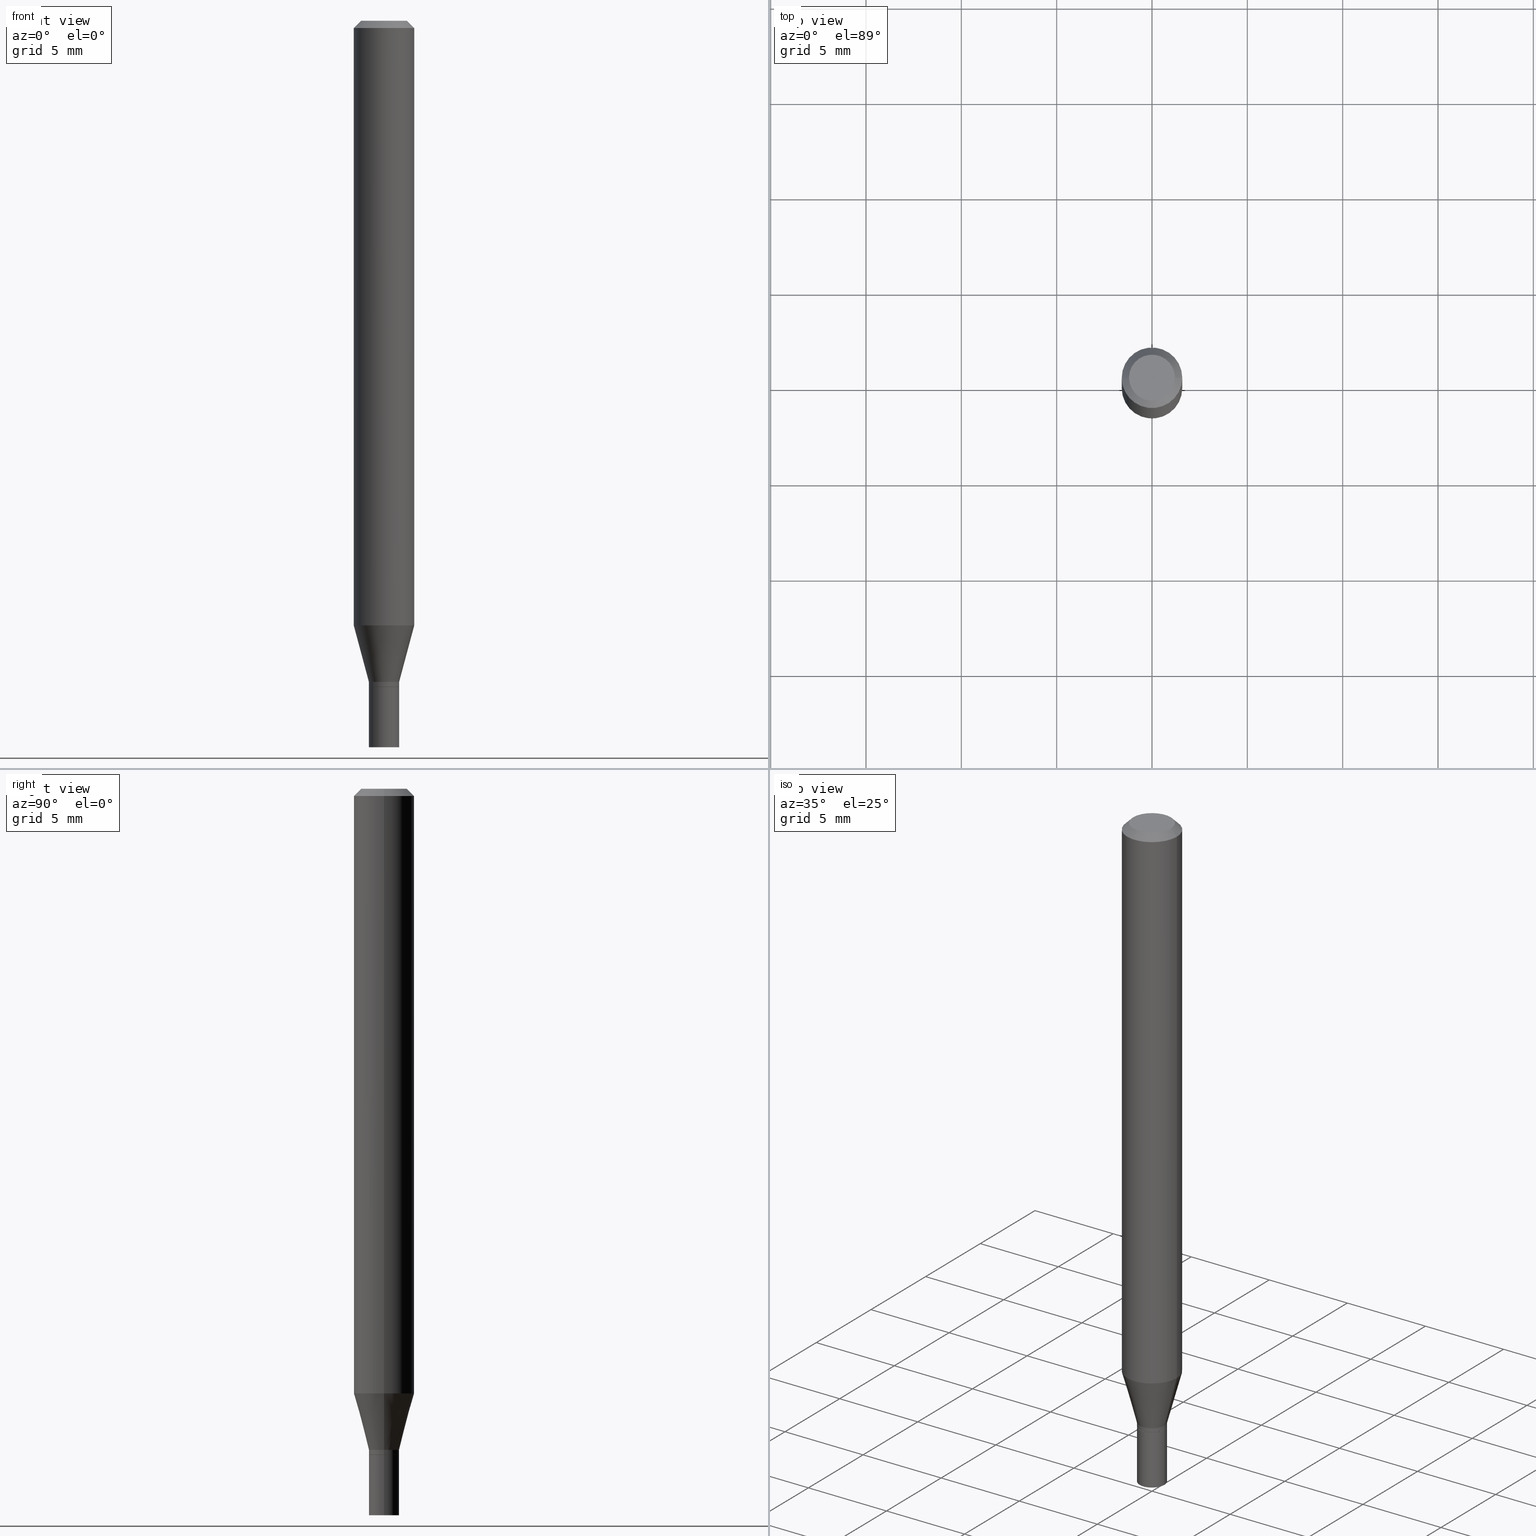
[diagram: canonical four-view strip — front | top / right | iso, engineering-drawing reading convention]
A machine part, canonical four-view strip (front | top / right | iso — engineering-drawing reading convention). The complete STEP part file that produces these views, byte-faithful:
ISO-10303-21;
HEADER;
FILE_DESCRIPTION (( 'STEP AP203' ),
    '1' );
FILE_NAME ('31251.STEP',
    '2024-03-13T16:28:59',
    ( '' ),
    ( '' ),
    'SwSTEP 2.0',
    'SolidWorks 2023',
    '' );
FILE_SCHEMA (( 'CONFIG_CONTROL_DESIGN' ));
ENDSEC;

DATA;
#1 = PERSON_AND_ORGANIZATION_ROLE ( 'design_supplier' ) ;
#2 =( GEOMETRIC_REPRESENTATION_CONTEXT ( 3 ) GLOBAL_UNCERTAINTY_ASSIGNED_CONTEXT ( ( #271 ) ) GLOBAL_UNIT_ASSIGNED_CONTEXT ( ( #391, #135, #212 ) ) REPRESENTATION_CONTEXT ( 'NONE', 'WORKASPACE' ) );
#3 = DIRECTION ( 'NONE',  ( -1.000000000000000000, 6.982962677686265922E-15, -4.876176775795935793E-29 ) ) ;
#4 = ORIENTED_EDGE ( 'NONE', *, *, #430, .T. ) ;
#5 = ORIENTED_EDGE ( 'NONE', *, *, #12, .T. ) ;
#6 = CONICAL_SURFACE ( 'NONE', #70, 0.06250000000000000000, 0.7853981633974563836 ) ;
#7 = CC_DESIGN_PERSON_AND_ORGANIZATION_ASSIGNMENT ( #147, #181, ( #152 ) ) ;
#8 = AXIS2_PLACEMENT_3D ( 'NONE', #119, #44, #185 ) ;
#9 = COORDINATED_UNIVERSAL_TIME_OFFSET ( 5, 0, .BEHIND. ) ;
#10 = DIRECTION ( 'NONE',  ( -2.445468806185136877E-29, 3.491481338843145188E-15, 1.000000000000000000 ) ) ;
#11 = CARTESIAN_POINT ( 'NONE',  ( 3.361296874101470580E-29, -4.799041100239904215E-15, -1.374500000000000055 ) ) ;
#12 = EDGE_CURVE ( 'NONE', #381, #95, #356, .T. ) ;
#13 = ADVANCED_FACE ( 'NONE', ( #139 ), #441, .T. ) ;
#14 = DIRECTION ( 'NONE',  ( -2.445468806185136597E-29, 3.491481338843145583E-15, 1.000000000000000000 ) ) ;
#15 = ORIENTED_EDGE ( 'NONE', *, *, #227, .F. ) ;
#16 = VECTOR ( 'NONE', #235, 39.37007874015748143 ) ;
#17 = DIRECTION ( 'NONE',  ( -2.445468806185136877E-29, 3.491481338843145188E-15, 1.000000000000000000 ) ) ;
#18 = EDGE_LOOP ( 'NONE', ( #404, #175, #355, #98 ) ) ;
#19 = DIRECTION ( 'NONE',  ( 2.438088387897960049E-29, -3.491481338843145188E-15, -1.000000000000000000 ) ) ;
#20 = DIRECTION ( 'NONE',  ( -2.445468806185136597E-29, 3.491481338843145583E-15, 1.000000000000000000 ) ) ;
#21 = FACE_OUTER_BOUND ( 'NONE', #22, .T. ) ;
#22 = EDGE_LOOP ( 'NONE', ( #427, #107, #424, #59 ) ) ;
#23 = AXIS2_PLACEMENT_3D ( 'NONE', #282, #453, #243 ) ;
#24 = AXIS2_PLACEMENT_3D ( 'NONE', #370, #373, #434 ) ;
#25 = CARTESIAN_POINT ( 'NONE',  ( 3.316907271900976096E-16, 0.04749999999999999362, -2.863946871395908498E-16 ) ) ;
#26 = FACE_OUTER_BOUND ( 'NONE', #18, .T. ) ;
#27 = DIRECTION ( 'NONE',  ( 1.000000000000000000, -6.982962677686270655E-15, 0.000000000000000000 ) ) ;
#28 = DIRECTION ( 'NONE',  ( 2.445468806185136597E-29, -3.491481338843145583E-15, -1.000000000000000000 ) ) ;
#29 = CARTESIAN_POINT ( 'NONE',  ( 0.000000000000000000, 0.000000000000000000, 0.000000000000000000 ) ) ;
#30 = EDGE_CURVE ( 'NONE', #226, #393, #388, .T. ) ;
#31 = DIRECTION ( 'NONE',  ( 1.000000000000000000, -6.982962677686275388E-15, 0.000000000000000000 ) ) ;
#32 = DIRECTION ( 'NONE',  ( 1.000000000000000000, 0.000000000000000000, 0.000000000000000000 ) ) ;
#33 = CARTESIAN_POINT ( 'NONE',  ( 0.000000000000000000, 0.000000000000000000, 0.000000000000000000 ) ) ;
#34 = DIRECTION ( 'NONE',  ( 1.000000000000000000, -6.982962677686274599E-15, 0.000000000000000000 ) ) ;
#35 = DIRECTION ( 'NONE',  ( -2.445468806185136597E-29, 3.491481338843145583E-15, 1.000000000000000000 ) ) ;
#36 = ADVANCED_FACE ( 'NONE', ( #74 ), #198, .T. ) ;
#37 = CARTESIAN_POINT ( 'NONE',  ( 3.362519608504562260E-29, -4.800786840909324930E-15, -1.375000000000000000 ) ) ;
#38 = DIRECTION ( 'NONE',  ( -0.7071067811865531239, 2.468850131082316225E-15, -0.7071067811865416886 ) ) ;
#39 = COORDINATED_UNIVERSAL_TIME_OFFSET ( 5, 0, .BEHIND. ) ;
#40 = DIRECTION ( 'NONE',  ( -2.445468806185136597E-29, 3.491481338843145583E-15, 1.000000000000000000 ) ) ;
#41 = SECURITY_CLASSIFICATION ( '', '', #295 ) ;
#42 = VECTOR ( 'NONE', #339, 39.37007874015748854 ) ;
#43 = DIRECTION ( 'NONE',  ( 1.000000000000000000, -6.982962677686267499E-15, 4.852736867747366768E-29 ) ) ;
#44 = DIRECTION ( 'NONE',  ( -2.445468806185136597E-29, 3.491481338843145583E-15, 1.000000000000000000 ) ) ;
#45 = CONICAL_SURFACE ( 'NONE', #315, 0.03075000000000000649, 0.7853981633974739252 ) ;
#46 = CARTESIAN_POINT ( 'NONE',  ( 0.000000000000000000, 0.000000000000000000, 0.000000000000000000 ) ) ;
#47 = VECTOR ( 'NONE', #10, 39.37007874015748143 ) ;
#48 = DIRECTION ( 'NONE',  ( 1.000000000000000000, -6.982962677686266711E-15, 4.876176775795935793E-29 ) ) ;
#49 = LINE ( 'NONE', #344, #16 ) ;
#50 = CARTESIAN_POINT ( 'NONE',  ( -0.06250000000000000000, -1.761433136604187439E-15, -0.01499999999999999944 ) ) ;
#51 = CIRCLE ( 'NONE', #267, 0.03075000000000000649 ) ;
#52 = DIRECTION ( 'NONE',  ( -2.445468806185136597E-29, 3.491481338843145583E-15, 1.000000000000000000 ) ) ;
#53 = CARTESIAN_POINT ( 'NONE',  ( -0.04749999999999999362, 3.578768372314206562E-16, -2.410986470890852239E-16 ) ) ;
#54 = CARTESIAN_POINT ( 'NONE',  ( 0.06250000000000000000, -4.811533449433679005E-16, -0.01499999999999999944 ) ) ;
#55 = VERTEX_POINT ( 'NONE', #173 ) ;
#56 = DIRECTION ( 'NONE',  ( -2.445468806185136597E-29, 3.491481338843145583E-15, 1.000000000000000000 ) ) ;
#57 = ORIENTED_EDGE ( 'NONE', *, *, #73, .F. ) ;
#58 = DIRECTION ( 'NONE',  ( 1.000000000000000000, -6.982962677686265922E-15, 4.876176775795935793E-29 ) ) ;
#59 = ORIENTED_EDGE ( 'NONE', *, *, #293, .F. ) ;
#60 = DIRECTION ( 'NONE',  ( -2.445468806185136597E-29, 3.491481338843145583E-15, 1.000000000000000000 ) ) ;
#61 = ORIENTED_EDGE ( 'NONE', *, *, #78, .F. ) ;
#62 = CC_DESIGN_DATE_AND_TIME_ASSIGNMENT ( #331, #149, ( #41 ) ) ;
#63 = EDGE_LOOP ( 'NONE', ( #265, #422 ) ) ;
#64 = CARTESIAN_POINT ( 'NONE',  ( -0.03075000000000000649, -4.582294949663094520E-15, -1.375000000000000000 ) ) ;
#65 = ORIENTED_EDGE ( 'NONE', *, *, #369, .F. ) ;
#66 = PLANE ( 'NONE',  #335 ) ;
#67 = DIRECTION ( 'NONE',  ( 0.000000000000000000, 0.000000000000000000, 1.000000000000000000 ) ) ;
#68 = CYLINDRICAL_SURFACE ( 'NONE', #306, 0.03124999999999979877 ) ;
#69 = CARTESIAN_POINT ( 'NONE',  ( 0.03124999999999979877, -2.182175836776944542E-16, 1.523805242436219951E-30 ) ) ;
#70 = AXIS2_PLACEMENT_3D ( 'NONE', #134, #284, #394 ) ;
#71 = APPLICATION_PROTOCOL_DEFINITION ( 'international standard', 'config_control_design', 1994, #266 ) ;
#72 = AXIS2_PLACEMENT_3D ( 'NONE', #383, #281, #353 ) ;
#73 = EDGE_CURVE ( 'NONE', #415, #308, #292, .T. ) ;
#74 = FACE_OUTER_BOUND ( 'NONE', #291, .T. ) ;
#75 = DIRECTION ( 'NONE',  ( -2.445468806185136597E-29, 3.491481338843145583E-15, 1.000000000000000000 ) ) ;
#76 = CARTESIAN_POINT ( 'NONE',  ( 3.362519608504562260E-29, -4.800786840909324930E-15, -1.375000000000000000 ) ) ;
#77 = DATE_AND_TIME ( #399, #303 ) ;
#78 = EDGE_CURVE ( 'NONE', #215, #431, #151, .T. ) ;
#79 = DIRECTION ( 'NONE',  ( -2.445468806185136597E-29, 3.491481338843145583E-15, 1.000000000000000000 ) ) ;
#80 = PERSON_AND_ORGANIZATION ( #174, #248 ) ;
#81 = APPROVAL_PERSON_ORGANIZATION ( #80, #396, #297 ) ;
#82 = AXIS2_PLACEMENT_3D ( 'NONE', #125, #19, #310 ) ;
#83 = VECTOR ( 'NONE', #296, 39.37007874015748143 ) ;
#84 = DIRECTION ( 'NONE',  ( -2.445468806185136597E-29, 3.491481338843145583E-15, 1.000000000000000000 ) ) ;
#85 = CIRCLE ( 'NONE', #172, 0.06250000000000000000 ) ;
#86 = CARTESIAN_POINT ( 'NONE',  ( 3.668203209277704895E-29, -5.237222008264718177E-15, -1.500000000000000222 ) ) ;
#87 = DIRECTION ( 'NONE',  ( -2.445468806185136877E-29, 3.491481338843145188E-15, 1.000000000000000000 ) ) ;
#88 = ORIENTED_EDGE ( 'NONE', *, *, #73, .T. ) ;
#89 = CARTESIAN_POINT ( 'NONE',  ( 3.576687321579069994E-29, -5.368277968210015545E-15, -1.500000000000000222 ) ) ;
#90 = ADVANCED_BREP_SHAPE_REPRESENTATION ( '31251', ( #213, #190, #444 ), #2 ) ;
#91 = AXIS2_PLACEMENT_3D ( 'NONE', #277, #56, #163 ) ;
#92 = EDGE_CURVE ( 'NONE', #180, #246, #49, .T. ) ;
#93 = CARTESIAN_POINT ( 'NONE',  ( 0.03124999999999993061, -5.017258683917599261E-15, -1.374500000000000055 ) ) ;
#94 = CARTESIAN_POINT ( 'NONE',  ( 0.000000000000000000, 0.000000000000000000, 0.000000000000000000 ) ) ;
#95 = VERTEX_POINT ( 'NONE', #93 ) ;
#96 = DIRECTION ( 'NONE',  ( 1.000000000000000000, -6.982962677686274599E-15, 0.000000000000000000 ) ) ;
#97 = ORIENTED_EDGE ( 'NONE', *, *, #186, .T. ) ;
#98 = ORIENTED_EDGE ( 'NONE', *, *, #143, .F. ) ;
#99 = DIRECTION ( 'NONE',  ( -2.445468806185136597E-29, 3.491481338843145583E-15, 1.000000000000000000 ) ) ;
#100 = ORIENTED_EDGE ( 'NONE', *, *, #195, .T. ) ;
#101 = ORIENTED_EDGE ( 'NONE', *, *, #206, .T. ) ;
#102 = CIRCLE ( 'NONE', #24, 0.06250000000000000000 ) ;
#103 = MECHANICAL_CONTEXT ( 'NONE', #239, 'mechanical' ) ;
#104 = ORIENTED_EDGE ( 'NONE', *, *, #260, .T. ) ;
#105 = ORIENTED_EDGE ( 'NONE', *, *, #227, .T. ) ;
#106 = PERSON_AND_ORGANIZATION ( #174, #248 ) ;
#107 = ORIENTED_EDGE ( 'NONE', *, *, #121, .T. ) ;
#108 = CC_DESIGN_DATE_AND_TIME_ASSIGNMENT ( #256, #395, ( #371 ) ) ;
#109 = APPROVAL_DATE_TIME ( #142, #182 ) ;
#110 = CARTESIAN_POINT ( 'NONE',  ( -0.06250000000000000000, -3.914583262975789231E-15, -1.248373412263471760 ) ) ;
#111 = AXIS2_PLACEMENT_3D ( 'NONE', #253, #137, #326 ) ;
#112 = DIRECTION ( 'NONE',  ( 1.000000000000000000, -6.982962677686267499E-15, 4.876176775795935232E-29 ) ) ;
#113 = PERSON_AND_ORGANIZATION ( #174, #248 ) ;
#114 = EDGE_LOOP ( 'NONE', ( #4, #425, #153, #140 ) ) ;
#115 = ADVANCED_FACE ( 'NONE', ( #196 ), #341, .F. ) ;
#116 = CARTESIAN_POINT ( 'NONE',  ( 0.04749999999999999362, -4.035134999187582567E-16, -2.410986470890802443E-16 ) ) ;
#117 = AXIS2_PLACEMENT_3D ( 'NONE', #345, #20, #129 ) ;
#118 = CARTESIAN_POINT ( 'NONE',  ( -0.03075000000000000649, -4.579645722488984108E-15, -1.375000000000000000 ) ) ;
#119 = CARTESIAN_POINT ( 'NONE',  ( 3.668203209277704895E-29, -5.237222008264718177E-15, -1.500000000000000222 ) ) ;
#120 = FACE_OUTER_BOUND ( 'NONE', #114, .T. ) ;
#121 = EDGE_CURVE ( 'NONE', #431, #280, #276, .T. ) ;
#122 = ORIENTED_EDGE ( 'NONE', *, *, #327, .F. ) ;
#123 = CIRCLE ( 'NONE', #91, 0.03075000000000000649 ) ;
#124 = DIRECTION ( 'NONE',  ( -0.2588190451025215166, 5.211531920934551042E-15, 0.9659258262890679791 ) ) ;
#125 = CARTESIAN_POINT ( 'NONE',  ( 2.182175836777295092E-16, 0.03124999999999520522, -1.375000000000000000 ) ) ;
#126 = LINE ( 'NONE', #272, #316 ) ;
#127 = ADVANCED_FACE ( 'NONE', ( #162 ), #459, .T. ) ;
#128 = DIRECTION ( 'NONE',  ( -2.445468806185136597E-29, 3.491481338843145583E-15, 1.000000000000000000 ) ) ;
#129 = DIRECTION ( 'NONE',  ( 1.000000000000000000, -6.982962677686266711E-15, 4.876176775795935793E-29 ) ) ;
#130 = ORIENTED_EDGE ( 'NONE', *, *, #159, .T. ) ;
#131 = FACE_OUTER_BOUND ( 'NONE', #63, .T. ) ;
#132 = CARTESIAN_POINT ( 'NONE',  ( 3.052858238161217332E-29, -4.358672472825852637E-15, -1.248373412263471760 ) ) ;
#133 = ADVANCED_FACE ( 'NONE', ( #141 ), #6, .T. ) ;
#134 = CARTESIAN_POINT ( 'NONE',  ( 3.668203209277705088E-31, -5.237222008264718399E-17, -0.01499999999999999944 ) ) ;
#135 =( NAMED_UNIT ( * ) PLANE_ANGLE_UNIT ( ) SI_UNIT ( $, .RADIAN. ) );
#136 = AXIS2_PLACEMENT_3D ( 'NONE', #11, #128, #157 ) ;
#137 = DIRECTION ( 'NONE',  ( -2.445468806185136597E-29, 3.491481338843145583E-15, 1.000000000000000000 ) ) ;
#138 = DIRECTION ( 'NONE',  ( -2.445468806185136597E-29, 3.491481338843145583E-15, 1.000000000000000000 ) ) ;
#139 = FACE_OUTER_BOUND ( 'NONE', #433, .T. ) ;
#140 = ORIENTED_EDGE ( 'NONE', *, *, #224, .F. ) ;
#141 = FACE_OUTER_BOUND ( 'NONE', #273, .T. ) ;
#142 = DATE_AND_TIME ( #429, #376 ) ;
#143 = EDGE_CURVE ( 'NONE', #95, #180, #426, .T. ) ;
#144 = ORIENTED_EDGE ( 'NONE', *, *, #195, .F. ) ;
#145 = CARTESIAN_POINT ( 'NONE',  ( 3.338064920442711836E-29, -4.765872027520893280E-15, -1.364999999999999991 ) ) ;
#146 = VECTOR ( 'NONE', #87, 39.37007874015748143 ) ;
#147 = PERSON_AND_ORGANIZATION ( #174, #248 ) ;
#148 = AXIS2_PLACEMENT_3D ( 'NONE', #170, #35, #27 ) ;
#149 = DATE_TIME_ROLE ( 'classification_date' ) ;
#150 = ADVANCED_FACE ( 'NONE', ( #252 ), #66, .F. ) ;
#151 = CIRCLE ( 'NONE', #218, 0.03125000000000000694 ) ;
#152 = PRODUCT_DEFINITION_FORMATION_WITH_SPECIFIED_SOURCE ( 'ANY', '', #367, .NOT_KNOWN. ) ;
#153 = ORIENTED_EDGE ( 'NONE', *, *, #446, .F. ) ;
#154 = ADVANCED_FACE ( 'NONE', ( #364 ), #45, .T. ) ;
#155 = CARTESIAN_POINT ( 'NONE',  ( 0.06250000000000000000, -4.795107640181243517E-15, -1.248373412263471760 ) ) ;
#156 = CARTESIAN_POINT ( 'NONE',  ( 3.668203209277705088E-31, -5.237222008264718399E-17, -0.01499999999999999944 ) ) ;
#157 = DIRECTION ( 'NONE',  ( 1.000000000000000000, -6.982962677686278543E-15, 0.000000000000000000 ) ) ;
#158 = DIRECTION ( 'NONE',  ( 1.000000000000000000, -6.982962677686267499E-15, 4.876176775795935793E-29 ) ) ;
#159 = EDGE_CURVE ( 'NONE', #393, #95, #397, .T. ) ;
#160 = LINE ( 'NONE', #311, #146 ) ;
#161 = EDGE_LOOP ( 'NONE', ( #428, #104, #312, #249 ) ) ;
#162 = FACE_OUTER_BOUND ( 'NONE', #464, .T. ) ;
#163 = DIRECTION ( 'NONE',  ( 1.000000000000000000, -6.982962677686275388E-15, 0.000000000000000000 ) ) ;
#164 = AXIS2_PLACEMENT_3D ( 'NONE', #132, #99, #247 ) ;
#165 = VERTEX_POINT ( 'NONE', #110 ) ;
#166 = EDGE_CURVE ( 'NONE', #255, #415, #232, .T. ) ;
#167 = FACE_OUTER_BOUND ( 'NONE', #324, .T. ) ;
#168 = ORIENTED_EDGE ( 'NONE', *, *, #446, .T. ) ;
#169 = ADVANCED_FACE ( 'NONE', ( #323 ), #68, .T. ) ;
#170 = CARTESIAN_POINT ( 'NONE',  ( 3.052858238161217332E-29, -4.358672472825852637E-15, -1.248373412263471760 ) ) ;
#171 = VECTOR ( 'NONE', #209, 39.37007874015748143 ) ;
#172 = AXIS2_PLACEMENT_3D ( 'NONE', #156, #14, #445 ) ;
#173 = CARTESIAN_POINT ( 'NONE',  ( -0.03124999999999966693, -4.229205342785826785E-15, -1.364999999999999991 ) ) ;
#174 = PERSON ( 'UNSPECIFIED', 'UNSPECIFIED', 'UNSPECIFIED', ('UNSPECIFIED'), ('UNSPECIFIED'), ('UNSPECIFIED') ) ;
#175 = ORIENTED_EDGE ( 'NONE', *, *, #241, .T. ) ;
#176 = LENGTH_MEASURE_WITH_UNIT ( LENGTH_MEASURE( 0.02539999999999999897 ), #179 );
#177 = DIRECTION ( 'NONE',  ( -2.445468806185136597E-29, 3.491481338843145583E-15, 1.000000000000000000 ) ) ;
#178 = EDGE_LOOP ( 'NONE', ( #202, #286, #419, #15 ) ) ;
#179 =( LENGTH_UNIT ( ) NAMED_UNIT ( * ) SI_UNIT ( $, .METRE. ) );
#180 = VERTEX_POINT ( 'NONE', #221 ) ;
#181 = PERSON_AND_ORGANIZATION_ROLE ( 'creator' ) ;
#182 = APPROVAL ( #321, 'UNSPECIFIED' ) ;
#183 = DESIGN_CONTEXT ( 'detailed design', #266, 'design' ) ;
#184 = PRODUCT_DEFINITION_SHAPE ( 'NONE', 'NONE',  #371 ) ;
#185 = DIRECTION ( 'NONE',  ( 1.000000000000000000, -6.982962677686261189E-15, 0.000000000000000000 ) ) ;
#186 = EDGE_CURVE ( 'NONE', #381, #226, #51, .T. ) ;
#187 = CIRCLE ( 'NONE', #416, 0.03124999999999966693 ) ;
#188 = ORIENTED_EDGE ( 'NONE', *, *, #369, .T. ) ;
#189 = CARTESIAN_POINT ( 'NONE',  ( -0.03124999999999979877, 2.220446049250298783E-16, -1.537167215704648248E-30 ) ) ;
#190 = MANIFOLD_SOLID_BREP ( 'Body-Move/Copy2[2]', #443 ) ;
#191 = CARTESIAN_POINT ( 'NONE',  ( 0.03125000000000000694, -5.455439591942414011E-15, -1.500000000000000222 ) ) ;
#192 = CALENDAR_DATE ( 2024, 13, 3 ) ;
#193 = LINE ( 'NONE', #189, #47 ) ;
#194 = EDGE_LOOP ( 'NONE', ( #351, #130, #205, #144 ) ) ;
#195 = EDGE_CURVE ( 'NONE', #55, #180, #398, .T. ) ;
#196 = FACE_OUTER_BOUND ( 'NONE', #349, .T. ) ;
#197 = CARTESIAN_POINT ( 'NONE',  ( 0.03125000000000000694, -5.019004424587020764E-15, -1.375000000000000000 ) ) ;
#198 = CONICAL_SURFACE ( 'NONE', #225, 0.03124999999999966693, 0.2617993877991502405 ) ;
#199 = ORIENTED_EDGE ( 'NONE', *, *, #166, .F. ) ;
#200 = AXIS2_PLACEMENT_3D ( 'NONE', #46, #84, #48 ) ;
#201 = CYLINDRICAL_SURFACE ( 'NONE', #294, 0.03125000000000000694 ) ;
#202 = ORIENTED_EDGE ( 'NONE', *, *, #401, .F. ) ;
#203 = DIMENSIONAL_EXPONENTS ( 1.000000000000000000, 0.000000000000000000, 0.000000000000000000, 0.000000000000000000, 0.000000000000000000, 0.000000000000000000, 0.000000000000000000 ) ;
#204 = DIRECTION ( 'NONE',  ( -2.438088387897960049E-29, 3.491481338843145188E-15, 1.000000000000000000 ) ) ;
#205 = ORIENTED_EDGE ( 'NONE', *, *, #143, .T. ) ;
#206 = EDGE_CURVE ( 'NONE', #255, #251, #309, .T. ) ;
#207 = FACE_OUTER_BOUND ( 'NONE', #161, .T. ) ;
#208 = CONICAL_SURFACE ( 'NONE', #72, 0.03075000000000000649, 0.7853981633974739252 ) ;
#209 = DIRECTION ( 'NONE',  ( 0.7071067811865656694, -2.468850131082446387E-15, 0.7071067811865294761 ) ) ;
#210 = CARTESIAN_POINT ( 'NONE',  ( -0.03125000000000000694, -4.796959819661991034E-15, -1.500000000000000222 ) ) ;
#211 = ORIENTED_EDGE ( 'NONE', *, *, #261, .T. ) ;
#212 =( NAMED_UNIT ( * ) SI_UNIT ( $, .STERADIAN. ) SOLID_ANGLE_UNIT ( ) );
#213 = MANIFOLD_SOLID_BREP ( 'Body-Move/Copy2[1]', #278 ) ;
#214 = ORIENTED_EDGE ( 'NONE', *, *, #430, .F. ) ;
#215 = VERTEX_POINT ( 'NONE', #191 ) ;
#216 = EDGE_CURVE ( 'NONE', #95, #393, #407, .T. ) ;
#217 = LOCAL_TIME ( 12, 28, 59.00000000000000000, #9 ) ;
#218 = AXIS2_PLACEMENT_3D ( 'NONE', #86, #52, #379 ) ;
#219 = CARTESIAN_POINT ( 'NONE',  ( 0.03075000000000000649, -5.015512943248178546E-15, -1.375000000000000000 ) ) ;
#220 = PERSON_AND_ORGANIZATION ( #174, #248 ) ;
#221 = CARTESIAN_POINT ( 'NONE',  ( 0.03124999999999966693, -4.984089611198587537E-15, -1.364999999999999991 ) ) ;
#222 = CARTESIAN_POINT ( 'NONE',  ( 3.668203209277705088E-31, -5.237222008264718399E-17, -0.01499999999999999944 ) ) ;
#223 = APPROVAL_DATE_TIME ( #77, #285 ) ;
#224 = EDGE_CURVE ( 'NONE', #246, #251, #362, .T. ) ;
#225 = AXIS2_PLACEMENT_3D ( 'NONE', #357, #456, #34 ) ;
#226 = VERTEX_POINT ( 'NONE', #118 ) ;
#227 = EDGE_CURVE ( 'NONE', #308, #251, #102, .T. ) ;
#228 = ORIENTED_EDGE ( 'NONE', *, *, #206, .F. ) ;
#229 = APPROVAL_DATE_TIME ( #442, #396 ) ;
#230 = CYLINDRICAL_SURFACE ( 'NONE', #200, 0.06250000000000000000 ) ;
#231 = APPROVAL_PERSON_ORGANIZATION ( #220, #285, #259 ) ;
#232 = CIRCLE ( 'NONE', #238, 0.04749999999999999362 ) ;
#233 = CIRCLE ( 'NONE', #111, 0.03125000000000000694 ) ;
#234 = ADVANCED_FACE ( 'NONE', ( #120 ), #230, .T. ) ;
#235 = DIRECTION ( 'NONE',  ( 0.2588190451025215166, 1.565188264969620784E-15, 0.9659258262890679791 ) ) ;
#236 = CARTESIAN_POINT ( 'NONE',  ( 0.000000000000000000, 0.000000000000000000, 0.000000000000000000 ) ) ;
#237 = CYLINDRICAL_SURFACE ( 'NONE', #23, 0.03125000000000000694 ) ;
#238 = AXIS2_PLACEMENT_3D ( 'NONE', #368, #75, #43 ) ;
#239 = APPLICATION_CONTEXT ( 'configuration controlled 3d designs of mechanical parts and assemblies' ) ;
#240 = PLANE ( 'NONE',  #437 ) ;
#241 = EDGE_CURVE ( 'NONE', #393, #55, #193, .T. ) ;
#242 = CARTESIAN_POINT ( 'NONE',  ( 0.06250000000000000000, -4.364351673553916694E-16, 3.047610484872459871E-30 ) ) ;
#243 = DIRECTION ( 'NONE',  ( 1.000000000000000000, -6.982962677686267499E-15, 4.876176775795935793E-29 ) ) ;
#244 = ORIENTED_EDGE ( 'NONE', *, *, #313, .T. ) ;
#245 = DIRECTION ( 'NONE',  ( -1.000000000000000000, 6.982962677686266711E-15, 0.000000000000000000 ) ) ;
#246 = VERTEX_POINT ( 'NONE', #155 ) ;
#247 = DIRECTION ( 'NONE',  ( 1.000000000000000000, -6.982962677686270655E-15, 0.000000000000000000 ) ) ;
#248 = ORGANIZATION ( 'UNSPECIFIED', 'UNSPECIFIED', '' ) ;
#249 = ORIENTED_EDGE ( 'NONE', *, *, #261, .F. ) ;
#250 = CC_DESIGN_PERSON_AND_ORGANIZATION_ASSIGNMENT ( #106, #457, ( #371 ) ) ;
#251 = VERTEX_POINT ( 'NONE', #302 ) ;
#252 = FACE_OUTER_BOUND ( 'NONE', #358, .T. ) ;
#253 = CARTESIAN_POINT ( 'NONE',  ( 3.362519608504562260E-29, -4.800786840909324930E-15, -1.375000000000000000 ) ) ;
#254 = DIRECTION ( 'NONE',  ( 1.000000000000000000, -6.982962677686278543E-15, 0.000000000000000000 ) ) ;
#255 = VERTEX_POINT ( 'NONE', #116 ) ;
#256 = DATE_AND_TIME ( #465, #299 ) ;
#257 = CC_DESIGN_SECURITY_CLASSIFICATION ( #41, ( #152 ) ) ;
#258 = VECTOR ( 'NONE', #361, 39.37007874015748143 ) ;
#259 = APPROVAL_ROLE ( '' ) ;
#260 = EDGE_CURVE ( 'NONE', #431, #215, #322, .T. ) ;
#261 = EDGE_CURVE ( 'NONE', #280, #390, #408, .T. ) ;
#262 = DIRECTION ( 'NONE',  ( -2.445468806185136597E-29, 3.491481338843145583E-15, 1.000000000000000000 ) ) ;
#263 = COORDINATED_UNIVERSAL_TIME_OFFSET ( 5, 0, .BEHIND. ) ;
#264 = VECTOR ( 'NONE', #385, 39.37007874015748143 ) ;
#265 = ORIENTED_EDGE ( 'NONE', *, *, #186, .F. ) ;
#266 = APPLICATION_CONTEXT ( 'configuration controlled 3d designs of mechanical parts and assemblies' ) ;
#267 = AXIS2_PLACEMENT_3D ( 'NONE', #37, #40, #466 ) ;
#268 = CC_DESIGN_PERSON_AND_ORGANIZATION_ASSIGNMENT ( #113, #400, ( #41 ) ) ;
#269 = DIRECTION ( 'NONE',  ( -2.445468806185136597E-29, 3.491481338843145583E-15, 1.000000000000000000 ) ) ;
#270 = ORIENTED_EDGE ( 'NONE', *, *, #12, .F. ) ;
#271 = UNCERTAINTY_MEASURE_WITH_UNIT (LENGTH_MEASURE( 1.000000000000000082E-05 ), #391, 'distance_accuracy_value', 'NONE');
#272 = CARTESIAN_POINT ( 'NONE',  ( -0.03124999999999966693, -4.543827422595864339E-15, -1.364999999999999991 ) ) ;
#273 = EDGE_LOOP ( 'NONE', ( #199, #101, #168, #57 ) ) ;
#274 = ORIENTED_EDGE ( 'NONE', *, *, #455, .F. ) ;
#275 = CC_DESIGN_PERSON_AND_ORGANIZATION_ASSIGNMENT ( #329, #1, ( #152 ) ) ;
#276 = LINE ( 'NONE', #417, #264 ) ;
#277 = CARTESIAN_POINT ( 'NONE',  ( 3.362519608504562260E-29, -4.800786840909324930E-15, -1.375000000000000000 ) ) ;
#278 = CLOSED_SHELL ( 'NONE', ( #375, #374, #405, #115 ) ) ;
#279 = CIRCLE ( 'NONE', #336, 0.04749999999999999362 ) ;
#280 = VERTEX_POINT ( 'NONE', #337 ) ;
#281 = DIRECTION ( 'NONE',  ( -2.445468806185136597E-29, 3.491481338843145583E-15, 1.000000000000000000 ) ) ;
#282 = CARTESIAN_POINT ( 'NONE',  ( 0.000000000000000000, 0.000000000000000000, 0.000000000000000000 ) ) ;
#283 = ORIENTED_EDGE ( 'NONE', *, *, #166, .T. ) ;
#284 = DIRECTION ( 'NONE',  ( 2.445468806185136597E-29, -3.491481338843145583E-15, -1.000000000000000000 ) ) ;
#285 = APPROVAL ( #363, 'UNSPECIFIED' ) ;
#286 = ORIENTED_EDGE ( 'NONE', *, *, #455, .T. ) ;
#287 = DIRECTION ( 'NONE',  ( 1.000000000000000000, -6.982962677686274599E-15, 0.000000000000000000 ) ) ;
#288 = APPROVAL_ROLE ( '' ) ;
#289 = DIRECTION ( 'NONE',  ( -2.445468806185136597E-29, 3.491481338843145583E-15, 1.000000000000000000 ) ) ;
#290 = ORIENTED_EDGE ( 'NONE', *, *, #30, .T. ) ;
#291 = EDGE_LOOP ( 'NONE', ( #458, #300, #214, #343 ) ) ;
#292 = LINE ( 'NONE', #365, #451 ) ;
#293 = EDGE_CURVE ( 'NONE', #215, #390, #307, .T. ) ;
#294 = AXIS2_PLACEMENT_3D ( 'NONE', #236, #60, #158 ) ;
#295 = SECURITY_CLASSIFICATION_LEVEL ( 'unclassified' ) ;
#296 = DIRECTION ( 'NONE',  ( -2.445468806185136877E-29, 3.491481338843145188E-15, 1.000000000000000000 ) ) ;
#297 = APPROVAL_ROLE ( '' ) ;
#298 = CALENDAR_DATE ( 2024, 13, 3 ) ;
#299 = LOCAL_TIME ( 12, 28, 59.00000000000000000, #39 ) ;
#300 = ORIENTED_EDGE ( 'NONE', *, *, #327, .T. ) ;
#301 = ADVANCED_FACE ( 'NONE', ( #131 ), #380, .F. ) ;
#302 = CARTESIAN_POINT ( 'NONE',  ( 0.06250000000000000000, -4.888073874380388472E-16, -0.01499999999999999944 ) ) ;
#303 = LOCAL_TIME ( 12, 28, 59.00000000000000000, #263 ) ;
#304 = AXIS2_PLACEMENT_3D ( 'NONE', #222, #28, #245 ) ;
#305 = DIRECTION ( 'NONE',  ( 1.000000000000000000, -6.982962677686267499E-15, 4.876176775795935232E-29 ) ) ;
#306 = AXIS2_PLACEMENT_3D ( 'NONE', #33, #177, #112 ) ;
#307 = LINE ( 'NONE', #386, #461 ) ;
#308 = VERTEX_POINT ( 'NONE', #50 ) ;
#309 = LINE ( 'NONE', #54, #42 ) ;
#310 = DIRECTION ( 'NONE',  ( -1.000000000000000000, 6.982962677686265922E-15, -4.876176775795935793E-29 ) ) ;
#311 = CARTESIAN_POINT ( 'NONE',  ( -0.06250000000000000000, 4.440892098500626162E-16, -3.074334431409316114E-30 ) ) ;
#312 = ORIENTED_EDGE ( 'NONE', *, *, #293, .T. ) ;
#313 = EDGE_CURVE ( 'NONE', #226, #381, #123, .T. ) ;
#314 = DIRECTION ( 'NONE',  ( 1.000000000000000000, -6.982962677686267499E-15, 4.852736867747366768E-29 ) ) ;
#315 = AXIS2_PLACEMENT_3D ( 'NONE', #462, #138, #31 ) ;
#316 = VECTOR ( 'NONE', #124, 39.37007874015748143 ) ;
#317 = CYLINDRICAL_SURFACE ( 'NONE', #117, 0.06250000000000000000 ) ;
#318 = PERSON_AND_ORGANIZATION ( #174, #248 ) ;
#319 = EDGE_CURVE ( 'NONE', #180, #55, #187, .T. ) ;
#320 = CARTESIAN_POINT ( 'NONE',  ( 3.338064920442711836E-29, -4.765872027520893280E-15, -1.364999999999999991 ) ) ;
#321 = APPROVAL_STATUS ( 'not_yet_approved' ) ;
#322 = CIRCLE ( 'NONE', #8, 0.03125000000000000694 ) ;
#323 = FACE_OUTER_BOUND ( 'NONE', #194, .T. ) ;
#324 = EDGE_LOOP ( 'NONE', ( #61, #384 ) ) ;
#325 = ORIENTED_EDGE ( 'NONE', *, *, #216, .F. ) ;
#326 = DIRECTION ( 'NONE',  ( 1.000000000000000000, -6.982962677686261189E-15, 0.000000000000000000 ) ) ;
#327 = EDGE_CURVE ( 'NONE', #55, #165, #126, .T. ) ;
#328 = PERSON_AND_ORGANIZATION_ROLE ( 'design_owner' ) ;
#329 = PERSON_AND_ORGANIZATION ( #174, #248 ) ;
#330 = AXIS2_PLACEMENT_3D ( 'NONE', #448, #204, #420 ) ;
#331 = DATE_AND_TIME ( #298, #334 ) ;
#332 = CC_DESIGN_PERSON_AND_ORGANIZATION_ASSIGNMENT ( #359, #328, ( #367 ) ) ;
#333 = DIRECTION ( 'NONE',  ( 1.000000000000000000, -6.982962677686261189E-15, 0.000000000000000000 ) ) ;
#334 = LOCAL_TIME ( 12, 28, 59.00000000000000000, #354 ) ;
#335 = AXIS2_PLACEMENT_3D ( 'NONE', #25, #438, #3 ) ;
#336 = AXIS2_PLACEMENT_3D ( 'NONE', #418, #412, #314 ) ;
#337 = CARTESIAN_POINT ( 'NONE',  ( -0.03125000000000000694, -4.796959819661991034E-15, -1.375000000000000000 ) ) ;
#338 = PRODUCT_RELATED_PRODUCT_CATEGORY ( 'detail', '', ( #367 ) ) ;
#339 = DIRECTION ( 'NONE',  ( 0.7071067811865531239, -7.319954787623273400E-15, -0.7071067811865416886 ) ) ;
#340 = ORIENTED_EDGE ( 'NONE', *, *, #159, .F. ) ;
#341 = PLANE ( 'NONE',  #82 ) ;
#342 = DIRECTION ( 'NONE',  ( -2.445468806185136597E-29, 3.491481338843145583E-15, 1.000000000000000000 ) ) ;
#343 = ORIENTED_EDGE ( 'NONE', *, *, #92, .F. ) ;
#344 = CARTESIAN_POINT ( 'NONE',  ( 0.03124999999999966693, -4.984089611198587537E-15, -1.364999999999999991 ) ) ;
#345 = CARTESIAN_POINT ( 'NONE',  ( 0.000000000000000000, 0.000000000000000000, 0.000000000000000000 ) ) ;
#346 = ORIENTED_EDGE ( 'NONE', *, *, #30, .F. ) ;
#347 = ADVANCED_FACE ( 'NONE', ( #26 ), #389, .T. ) ;
#348 = DIRECTION ( 'NONE',  ( -2.438088387897960049E-29, 3.491481338843145188E-15, 1.000000000000000000 ) ) ;
#349 = EDGE_LOOP ( 'NONE', ( #413, #211 ) ) ;
#350 = AXIS2_PLACEMENT_3D ( 'NONE', #94, #269, #305 ) ;
#351 = ORIENTED_EDGE ( 'NONE', *, *, #241, .F. ) ;
#352 = DIRECTION ( 'NONE',  ( -2.445468806185136877E-29, 3.491481338843145188E-15, 1.000000000000000000 ) ) ;
#353 = DIRECTION ( 'NONE',  ( 1.000000000000000000, -6.982962677686275388E-15, 0.000000000000000000 ) ) ;
#354 = COORDINATED_UNIVERSAL_TIME_OFFSET ( 5, 0, .BEHIND. ) ;
#355 = ORIENTED_EDGE ( 'NONE', *, *, #319, .F. ) ;
#356 = LINE ( 'NONE', #219, #171 ) ;
#357 = CARTESIAN_POINT ( 'NONE',  ( 3.338064920442711836E-29, -4.765872027520893280E-15, -1.364999999999999991 ) ) ;
#358 = EDGE_LOOP ( 'NONE', ( #188, #283 ) ) ;
#359 = PERSON_AND_ORGANIZATION ( #174, #248 ) ;
#360 = APPROVAL_PERSON_ORGANIZATION ( #318, #182, #288 ) ;
#361 = DIRECTION ( 'NONE',  ( -0.7071067811865656694, 7.493145998870420424E-15, 0.7071067811865294761 ) ) ;
#362 = LINE ( 'NONE', #242, #83 ) ;
#363 = APPROVAL_STATUS ( 'not_yet_approved' ) ;
#364 = FACE_OUTER_BOUND ( 'NONE', #372, .T. ) ;
#365 = CARTESIAN_POINT ( 'NONE',  ( -0.06250000000000000000, 3.840629472727444916E-16, -0.01499999999999999944 ) ) ;
#366 = COORDINATED_UNIVERSAL_TIME_OFFSET ( 5, 0, .BEHIND. ) ;
#367 = PRODUCT ( '31251', '31251', '', ( #103 ) ) ;
#368 = CARTESIAN_POINT ( 'NONE',  ( 5.895992206697910099E-45, -8.417914271318620386E-31, -2.410986470890828574E-16 ) ) ;
#369 = EDGE_CURVE ( 'NONE', #415, #255, #279, .T. ) ;
#370 = CARTESIAN_POINT ( 'NONE',  ( 3.668203209277705088E-31, -5.237222008264718399E-17, -0.01499999999999999944 ) ) ;
#371 = PRODUCT_DEFINITION ( 'UNKNOWN', '', #152, #183 ) ;
#372 = EDGE_LOOP ( 'NONE', ( #346, #244, #5, #340 ) ) ;
#373 = DIRECTION ( 'NONE',  ( -2.445468806185136597E-29, 3.491481338843145583E-15, 1.000000000000000000 ) ) ;
#374 = ADVANCED_FACE ( 'NONE', ( #167 ), #240, .F. ) ;
#375 = ADVANCED_FACE ( 'NONE', ( #21 ), #237, .T. ) ;
#376 = LOCAL_TIME ( 12, 28, 59.00000000000000000, #366 ) ;
#377 = AXIS2_PLACEMENT_3D ( 'NONE', #320, #463, #287 ) ;
#378 = CIRCLE ( 'NONE', #148, 0.06250000000000000000 ) ;
#379 = DIRECTION ( 'NONE',  ( 1.000000000000000000, -6.982962677686261189E-15, 0.000000000000000000 ) ) ;
#380 = PLANE ( 'NONE',  #330 ) ;
#381 = VERTEX_POINT ( 'NONE', #387 ) ;
#382 = CIRCLE ( 'NONE', #164, 0.06250000000000000000 ) ;
#383 = CARTESIAN_POINT ( 'NONE',  ( 3.362519608504562260E-29, -4.800786840909324930E-15, -1.375000000000000000 ) ) ;
#384 = ORIENTED_EDGE ( 'NONE', *, *, #260, .F. ) ;
#385 = DIRECTION ( 'NONE',  ( -2.445468806185136877E-29, 3.491481338843145188E-15, 1.000000000000000000 ) ) ;
#386 = CARTESIAN_POINT ( 'NONE',  ( 0.03125000000000000694, -2.182175836776959087E-16, 1.523805242436230286E-30 ) ) ;
#387 = CARTESIAN_POINT ( 'NONE',  ( 0.03075000000000000649, -5.015512943248178546E-15, -1.375000000000000000 ) ) ;
#388 = LINE ( 'NONE', #64, #258 ) ;
#389 = CYLINDRICAL_SURFACE ( 'NONE', #350, 0.03124999999999979877 ) ;
#390 = VERTEX_POINT ( 'NONE', #197 ) ;
#391 =( CONVERSION_BASED_UNIT ( 'INCH', #176 ) LENGTH_UNIT ( ) NAMED_UNIT ( #203 ) );
#392 = EDGE_LOOP ( 'NONE', ( #97, #290, #325, #270 ) ) ;
#393 = VERTEX_POINT ( 'NONE', #409 ) ;
#394 = DIRECTION ( 'NONE',  ( -1.000000000000000000, 6.982962677686266711E-15, 0.000000000000000000 ) ) ;
#395 = DATE_TIME_ROLE ( 'creation_date' ) ;
#396 = APPROVAL ( #406, 'UNSPECIFIED' ) ;
#397 = CIRCLE ( 'NONE', #436, 0.03124999999999993061 ) ;
#398 = CIRCLE ( 'NONE', #403, 0.03124999999999966693 ) ;
#399 = CALENDAR_DATE ( 2024, 13, 3 ) ;
#400 = PERSON_AND_ORGANIZATION_ROLE ( 'classification_officer' ) ;
#401 = EDGE_CURVE ( 'NONE', #165, #308, #160, .T. ) ;
#402 = VECTOR ( 'NONE', #352, 39.37007874015748143 ) ;
#403 = AXIS2_PLACEMENT_3D ( 'NONE', #145, #262, #447 ) ;
#404 = ORIENTED_EDGE ( 'NONE', *, *, #216, .T. ) ;
#405 = ADVANCED_FACE ( 'NONE', ( #207 ), #201, .T. ) ;
#406 = APPROVAL_STATUS ( 'not_yet_approved' ) ;
#407 = CIRCLE ( 'NONE', #136, 0.03124999999999993061 ) ;
#408 = CIRCLE ( 'NONE', #452, 0.03125000000000000694 ) ;
#409 = CARTESIAN_POINT ( 'NONE',  ( -0.03124999999999993061, -4.576996495314873696E-15, -1.374500000000000055 ) ) ;
#410 = ORIENTED_EDGE ( 'NONE', *, *, #92, .T. ) ;
#411 = ADVANCED_FACE ( 'NONE', ( #454 ), #208, .T. ) ;
#412 = DIRECTION ( 'NONE',  ( -2.445468806185136597E-29, 3.491481338843145583E-15, 1.000000000000000000 ) ) ;
#413 = ORIENTED_EDGE ( 'NONE', *, *, #450, .T. ) ;
#414 = CC_DESIGN_APPROVAL ( #285, ( #152 ) ) ;
#415 = VERTEX_POINT ( 'NONE', #53 ) ;
#416 = AXIS2_PLACEMENT_3D ( 'NONE', #449, #342, #96 ) ;
#417 = CARTESIAN_POINT ( 'NONE',  ( -0.03125000000000000694, 2.220446049250313574E-16, -1.537167215704658582E-30 ) ) ;
#418 = CARTESIAN_POINT ( 'NONE',  ( 5.895992206697910099E-45, -8.417914271318620386E-31, -2.410986470890828574E-16 ) ) ;
#419 = ORIENTED_EDGE ( 'NONE', *, *, #224, .T. ) ;
#420 = DIRECTION ( 'NONE',  ( 1.000000000000000000, -6.982962677686265922E-15, 4.876176775795935793E-29 ) ) ;
#421 = ADVANCED_FACE ( 'NONE', ( #423 ), #317, .T. ) ;
#422 = ORIENTED_EDGE ( 'NONE', *, *, #313, .F. ) ;
#423 = FACE_OUTER_BOUND ( 'NONE', #178, .T. ) ;
#424 = ORIENTED_EDGE ( 'NONE', *, *, #450, .F. ) ;
#425 = ORIENTED_EDGE ( 'NONE', *, *, #401, .T. ) ;
#426 = LINE ( 'NONE', #69, #402 ) ;
#427 = ORIENTED_EDGE ( 'NONE', *, *, #78, .T. ) ;
#428 = ORIENTED_EDGE ( 'NONE', *, *, #121, .F. ) ;
#429 = CALENDAR_DATE ( 2024, 13, 3 ) ;
#430 = EDGE_CURVE ( 'NONE', #246, #165, #382, .T. ) ;
#431 = VERTEX_POINT ( 'NONE', #210 ) ;
#432 = CARTESIAN_POINT ( 'NONE',  ( 3.361296874101470580E-29, -4.799041100239904215E-15, -1.374500000000000055 ) ) ;
#433 = EDGE_LOOP ( 'NONE', ( #228, #65, #88, #105 ) ) ;
#434 = DIRECTION ( 'NONE',  ( 1.000000000000000000, -6.982962677686266711E-15, 0.000000000000000000 ) ) ;
#435 = CC_DESIGN_APPROVAL ( #182, ( #371 ) ) ;
#436 = AXIS2_PLACEMENT_3D ( 'NONE', #432, #289, #254 ) ;
#437 = AXIS2_PLACEMENT_3D ( 'NONE', #89, #348, #58 ) ;
#438 = DIRECTION ( 'NONE',  ( 2.438088387897960049E-29, -3.491481338843145188E-15, -1.000000000000000000 ) ) ;
#439 = SHAPE_DEFINITION_REPRESENTATION ( #184, #90 ) ;
#440 = CC_DESIGN_APPROVAL ( #396, ( #41 ) ) ;
#441 = CONICAL_SURFACE ( 'NONE', #304, 0.06250000000000000000, 0.7853981633974563836 ) ;
#442 = DATE_AND_TIME ( #192, #217 ) ;
#443 = CLOSED_SHELL ( 'NONE', ( #347, #411, #133, #234, #36, #127, #421, #13, #150, #301, #154, #169 ) ) ;
#444 = AXIS2_PLACEMENT_3D ( 'NONE', #29, #67, #32 ) ;
#445 = DIRECTION ( 'NONE',  ( 1.000000000000000000, -6.982962677686266711E-15, 0.000000000000000000 ) ) ;
#446 = EDGE_CURVE ( 'NONE', #251, #308, #85, .T. ) ;
#447 = DIRECTION ( 'NONE',  ( 1.000000000000000000, -6.982962677686274599E-15, 0.000000000000000000 ) ) ;
#448 = CARTESIAN_POINT ( 'NONE',  ( 3.362519608504562260E-29, -4.800786840909324930E-15, -1.375000000000000000 ) ) ;
#449 = CARTESIAN_POINT ( 'NONE',  ( 3.338064920442711836E-29, -4.765872027520893280E-15, -1.364999999999999991 ) ) ;
#450 = EDGE_CURVE ( 'NONE', #390, #280, #233, .T. ) ;
#451 = VECTOR ( 'NONE', #38, 39.37007874015748854 ) ;
#452 = AXIS2_PLACEMENT_3D ( 'NONE', #76, #79, #333 ) ;
#453 = DIRECTION ( 'NONE',  ( -2.445468806185136597E-29, 3.491481338843145583E-15, 1.000000000000000000 ) ) ;
#454 = FACE_OUTER_BOUND ( 'NONE', #392, .T. ) ;
#455 = EDGE_CURVE ( 'NONE', #165, #246, #378, .T. ) ;
#456 = DIRECTION ( 'NONE',  ( -2.445468806185136597E-29, 3.491481338843145583E-15, 1.000000000000000000 ) ) ;
#457 = PERSON_AND_ORGANIZATION_ROLE ( 'creator' ) ;
#458 = ORIENTED_EDGE ( 'NONE', *, *, #319, .T. ) ;
#459 = CONICAL_SURFACE ( 'NONE', #377, 0.03124999999999966693, 0.2617993877991502405 ) ;
#460 = APPLICATION_PROTOCOL_DEFINITION ( 'international standard', 'config_control_design', 1994, #239 ) ;
#461 = VECTOR ( 'NONE', #17, 39.37007874015748143 ) ;
#462 = CARTESIAN_POINT ( 'NONE',  ( 3.362519608504562260E-29, -4.800786840909324930E-15, -1.375000000000000000 ) ) ;
#463 = DIRECTION ( 'NONE',  ( -2.445468806185136597E-29, 3.491481338843145583E-15, 1.000000000000000000 ) ) ;
#464 = EDGE_LOOP ( 'NONE', ( #122, #100, #410, #274 ) ) ;
#465 = CALENDAR_DATE ( 2024, 13, 3 ) ;
#466 = DIRECTION ( 'NONE',  ( 1.000000000000000000, -6.982962677686275388E-15, 0.000000000000000000 ) ) ;
ENDSEC;
END-ISO-10303-21;
